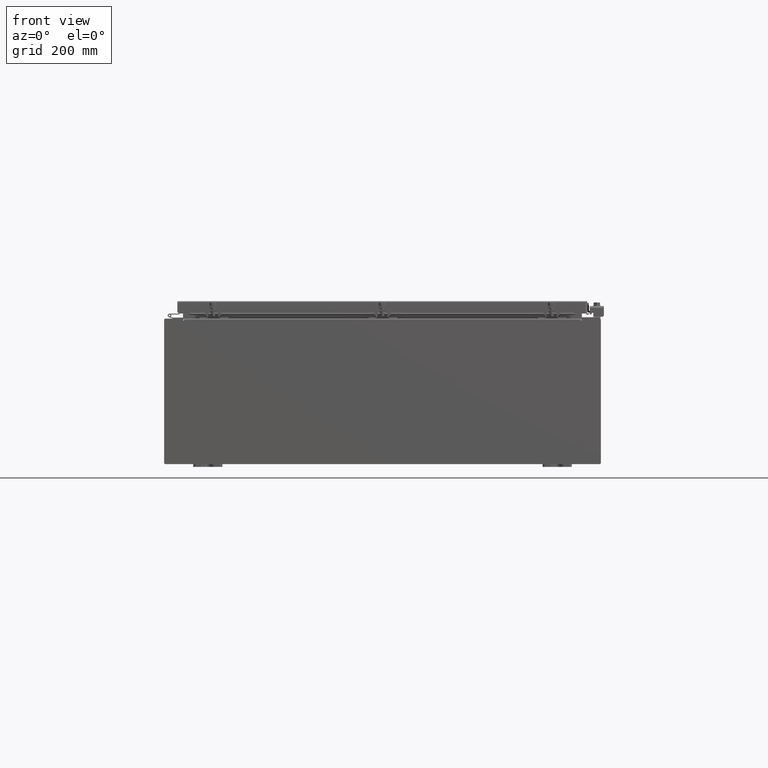
[diagram: clean part render]
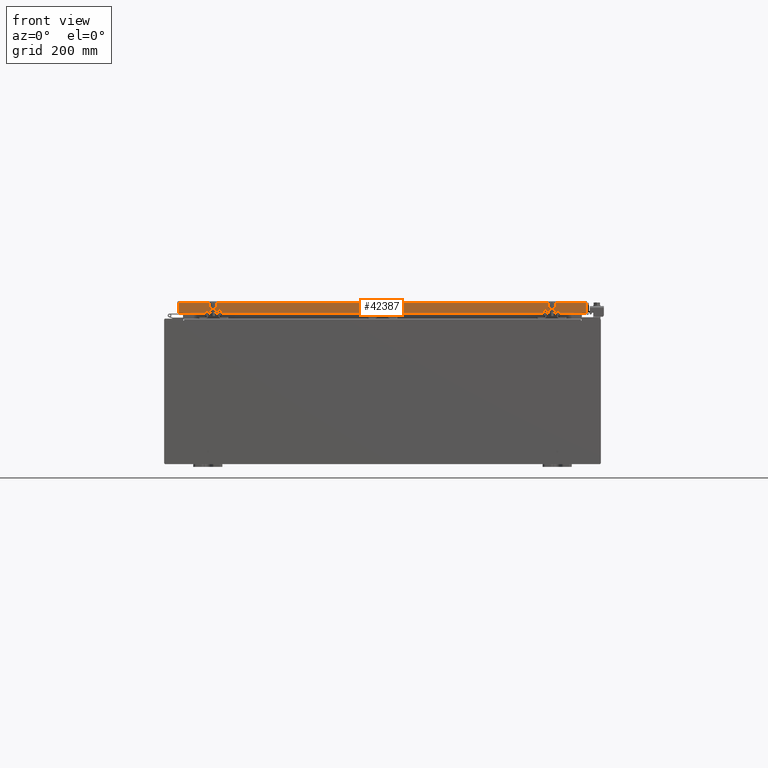
[diagram: same view with one face highlighted and labeled with its STEP entity id]
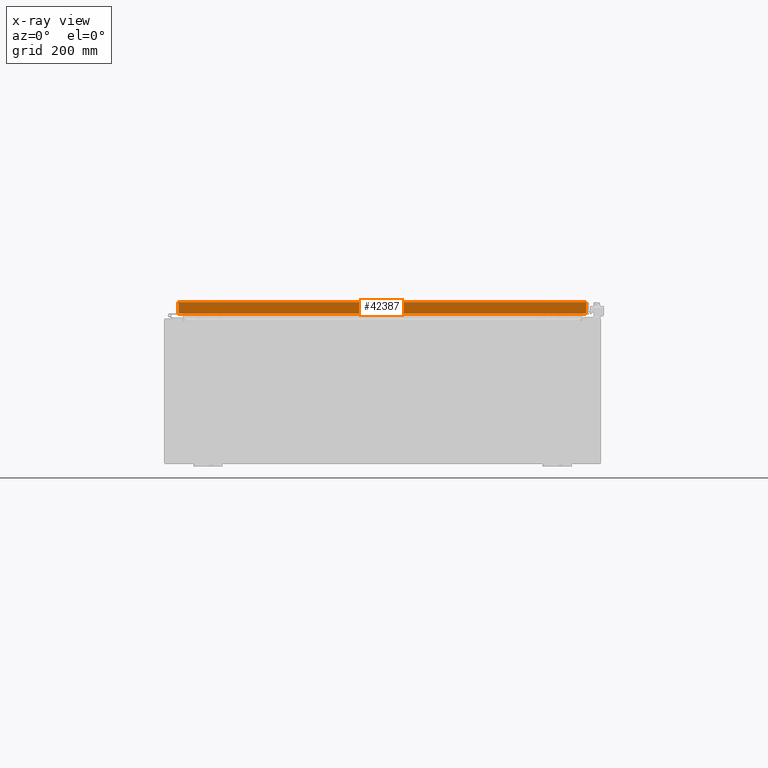
[diagram: x-ray of the same camera — body ghosted, the highlighted face saturated]
A machine part, front view. The second image highlights one B-rep face of the part: STEP entity #42387.
The next image is the same camera in x-ray: the body ghosted, the highlighted face saturated — about 0% of this face is hidden behind the body in this view.
In plain terms, the highlighted planar face has unit normal (-0, 1, -0).
Its self-contained STEP definition (entity closure, byte-faithful):
#34 = EDGE_CURVE ( 'NONE', #6886, #8483, #13456, .T. ) ;
#1222 = DIRECTION ( 'NONE',  ( -1.000000000000000000, 4.379057701015054300E-047, 1.212817869044015600E-016 ) ) ;
#1327 = CARTESIAN_POINT ( 'NONE',  ( 13.23915786437626000, -17.09399999999999800, -0.8500000000000006400 ) ) ;
#1720 = ORIENTED_EDGE ( 'NONE', *, *, #41964, .F. ) ;
#1948 = CARTESIAN_POINT ( 'NONE',  ( 5.844078221047488100E-030, -17.09400000000000100, 4.844676449176230700E-014 ) ) ;
#3555 = ORIENTED_EDGE ( 'NONE', *, *, #16510, .F. ) ;
#4197 = CARTESIAN_POINT ( 'NONE',  ( 14.07799999999999400, -17.09400000000000100, -0.08770000000000007000 ) ) ;
#4745 = CARTESIAN_POINT ( 'NONE',  ( 13.98915786437626400, -17.09400000000000100, -0.07469999999999978000 ) ) ;
#4990 = EDGE_CURVE ( 'NONE', #39674, #20543, #24237, .T. ) ;
#5402 = LINE ( 'NONE', #6258, #39874 ) ;
#6258 = CARTESIAN_POINT ( 'NONE',  ( -13.98915786437627600, -17.09400000000000100, 4.844676449176230700E-014 ) ) ;
#6364 = LINE ( 'NONE', #37854, #23113 ) ;
#6886 = VERTEX_POINT ( 'NONE', #17292 ) ;
#7558 = FACE_OUTER_BOUND ( 'NONE', #31644, .T. ) ;
#8066 = DIRECTION ( 'NONE',  ( -0.0000000000000000000, -2.818880942772360100E-015, -1.000000000000000000 ) ) ;
#8483 = VERTEX_POINT ( 'NONE', #10817 ) ;
#8646 = DIRECTION ( 'NONE',  ( -3.418789178101958800E-031, 1.000000000000000000, -2.818880942772360100E-015 ) ) ;
#9600 = DIRECTION ( 'NONE',  ( 0.0000000000000000000, -2.818880942772360100E-015, -1.000000000000000000 ) ) ;
#10817 = CARTESIAN_POINT ( 'NONE',  ( -13.98915786437627800, -17.09400000000000100, -0.8499999999999963100 ) ) ;
#12156 = CARTESIAN_POINT ( 'NONE',  ( 14.07799999999999400, -17.09400000000000100, -0.8499999999999996400 ) ) ;
#12373 = CARTESIAN_POINT ( 'NONE',  ( 13.98915786437626400, -17.09400000000000100, -0.8499999999999996400 ) ) ;
#13456 = LINE ( 'NONE', #12156, #30189 ) ;
#14397 = ORIENTED_EDGE ( 'NONE', *, *, #35227, .T. ) ;
#15336 = VERTEX_POINT ( 'NONE', #1327 ) ;
#16178 = VECTOR ( 'NONE', #8066, 39.37007874015748100 ) ;
#16290 = AXIS2_PLACEMENT_3D ( 'NONE', #1948, #8646, #32048 ) ;
#16510 = EDGE_CURVE ( 'NONE', #20543, #29655, #42790, .T. ) ;
#17292 = CARTESIAN_POINT ( 'NONE',  ( -13.23915786437627800, -17.09399999999999800, -0.8500000000000006400 ) ) ;
#17563 = ORIENTED_EDGE ( 'NONE', *, *, #36154, .F. ) ;
#18579 = PLANE ( 'NONE',  #16290 ) ;
#19209 = CARTESIAN_POINT ( 'NONE',  ( -13.98915786437627800, -17.09400000000000100, -0.08770000000000007000 ) ) ;
#19506 = DIRECTION ( 'NONE',  ( 1.000000000000000000, 3.418789178101959700E-031, -9.318824769679573900E-046 ) ) ;
#20543 = VERTEX_POINT ( 'NONE', #41862 ) ;
#21267 = ORIENTED_EDGE ( 'NONE', *, *, #34, .F. ) ;
#23113 = VECTOR ( 'NONE', #1222, 39.37007874015748100 ) ;
#23321 = VECTOR ( 'NONE', #26396, 39.37007874015748100 ) ;
#24237 = LINE ( 'NONE', #4197, #41956 ) ;
#26396 = DIRECTION ( 'NONE',  ( -1.000000000000000000, 0.0000000000000000000, 0.0000000000000000000 ) ) ;
#26753 = DIRECTION ( 'NONE',  ( -1.000000000000000000, 4.379057701015054300E-047, 1.212817869044015600E-016 ) ) ;
#29655 = VERTEX_POINT ( 'NONE', #12373 ) ;
#30189 = VECTOR ( 'NONE', #26753, 39.37007874015748100 ) ;
#31644 = EDGE_LOOP ( 'NONE', ( #35400, #14397, #21267, #1720, #17563, #3555 ) ) ;
#32048 = DIRECTION ( 'NONE',  ( 0.0000000000000000000, 2.818880942772360100E-015, 1.000000000000000000 ) ) ;
#33245 = LINE ( 'NONE', #36441, #23321 ) ;
#35227 = EDGE_CURVE ( 'NONE', #39674, #8483, #5402, .T. ) ;
#35400 = ORIENTED_EDGE ( 'NONE', *, *, #4990, .F. ) ;
#36154 = EDGE_CURVE ( 'NONE', #29655, #15336, #6364, .T. ) ;
#36441 = CARTESIAN_POINT ( 'NONE',  ( 13.23915786437626000, -17.09399999999999800, -0.8500000000000006400 ) ) ;
#37854 = CARTESIAN_POINT ( 'NONE',  ( 14.07799999999999400, -17.09400000000000100, -0.8499999999999996400 ) ) ;
#39674 = VERTEX_POINT ( 'NONE', #19209 ) ;
#39874 = VECTOR ( 'NONE', #9600, 39.37007874015748100 ) ;
#41862 = CARTESIAN_POINT ( 'NONE',  ( 13.98915786437626500, -17.09400000000000100, -0.08770000000000007000 ) ) ;
#41956 = VECTOR ( 'NONE', #19506, 39.37007874015748100 ) ;
#41964 = EDGE_CURVE ( 'NONE', #15336, #6886, #33245, .T. ) ;
#42387 = ADVANCED_FACE ( 'NONE', ( #7558 ), #18579, .F. ) ;
#42790 = LINE ( 'NONE', #4745, #16178 ) ;